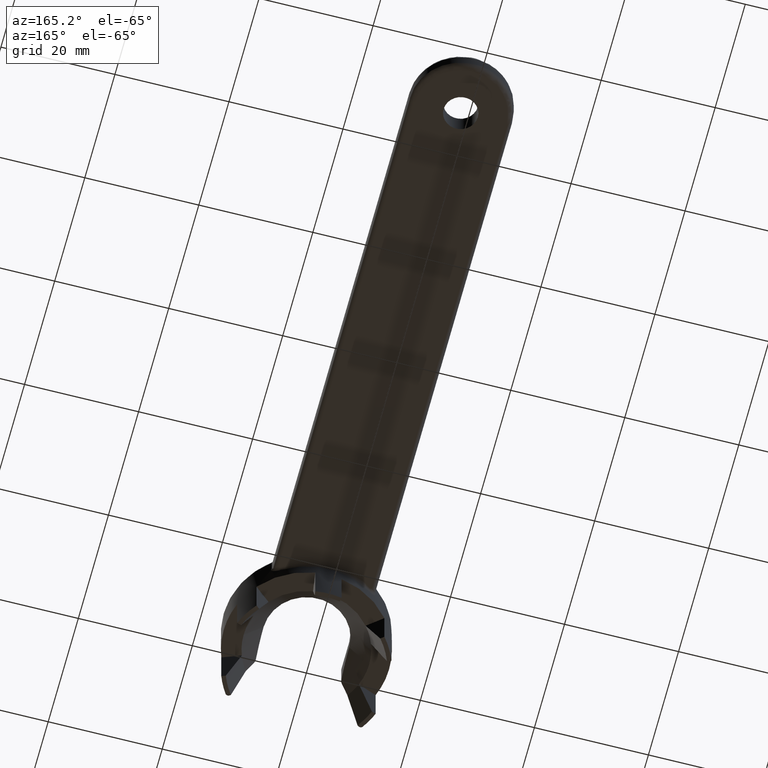
[diagram: clean part render]
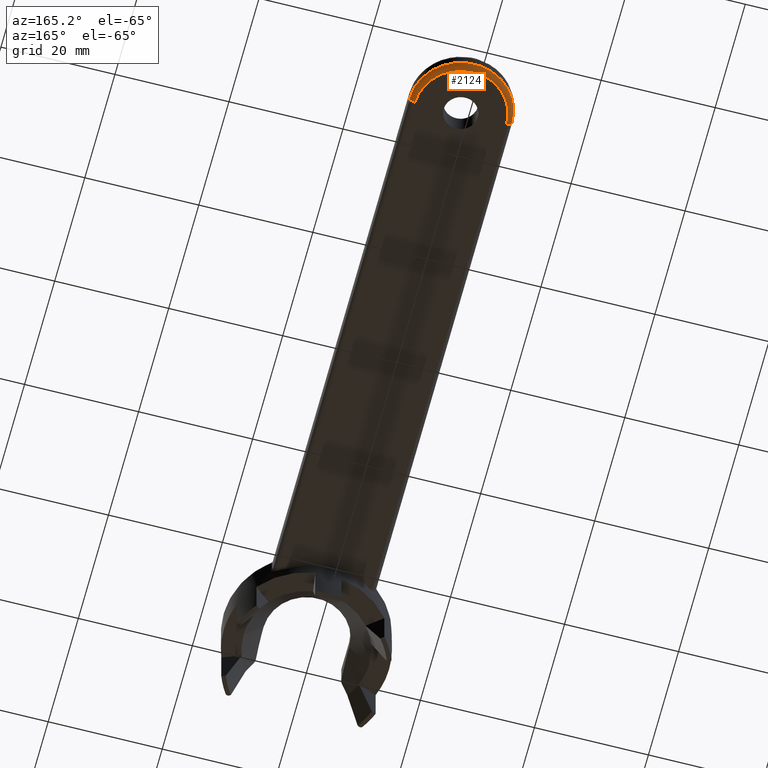
[diagram: same view with one face highlighted and labeled with its STEP entity id]
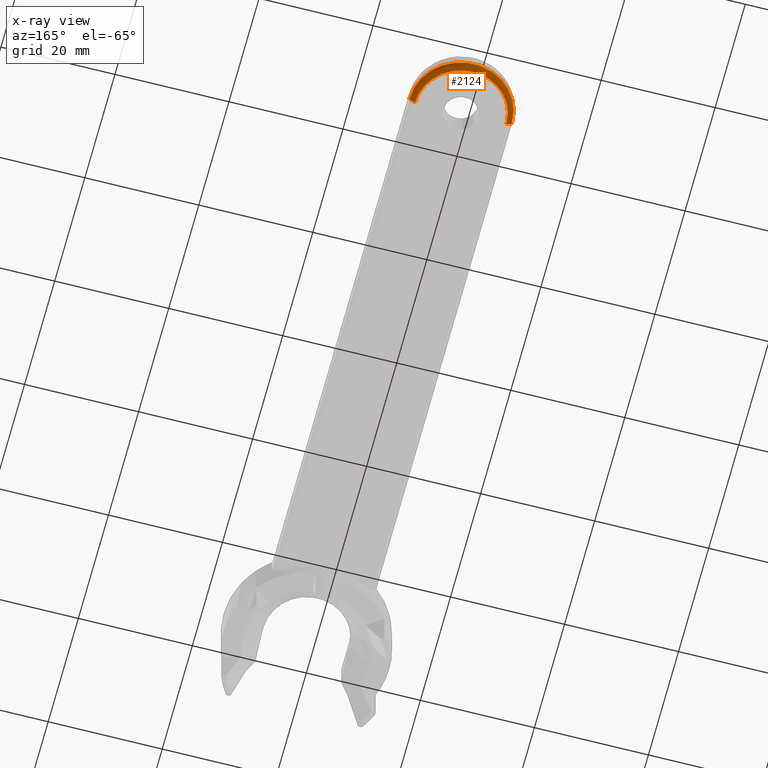
[diagram: x-ray of the same camera — body ghosted, the highlighted face saturated]
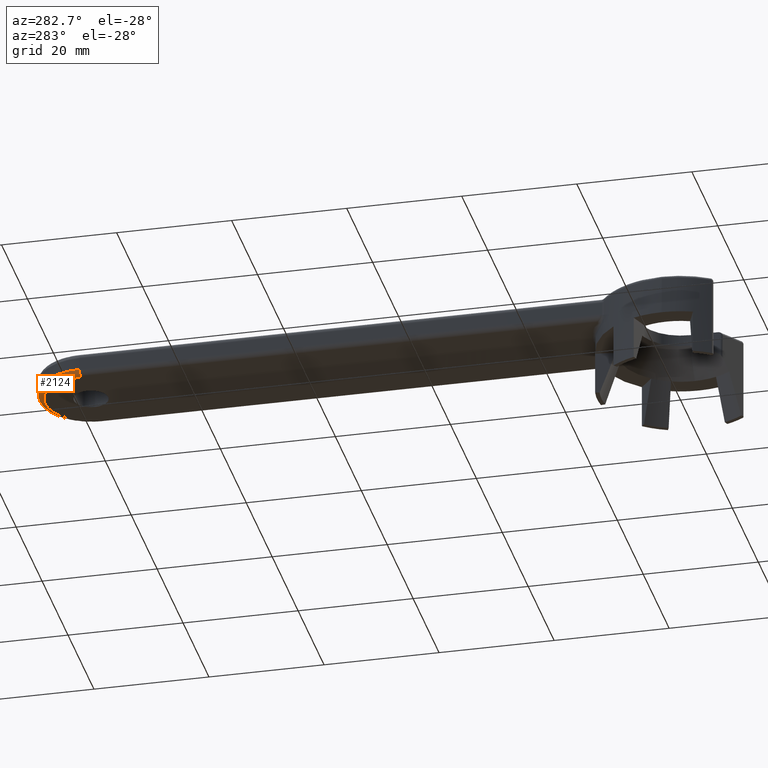
[diagram: same view with one face highlighted and labeled with its STEP entity id]
A machine part, auxiliary view. The second image highlights one B-rep face of the part: STEP entity #2124.
The next image is the same camera in x-ray: the body ghosted, the highlighted face saturated — about 0% of this face is hidden behind the body in this view.
A second angle (auxiliary view) of the same face is appended — the face is thin or edge-on in the first view.
In plain terms, the highlighted face is a freeform B-spline surface patch.
Its self-contained STEP definition (entity closure, byte-faithful):
#15 = CARTESIAN_POINT ( 'NONE',  ( 7.999999999937709400, 102.4771138296289600, -4.149999999948736500 ) ) ;
#42 = CARTESIAN_POINT ( 'NONE',  ( -9.063220423000000600, 120.6035546870000100, -3.730053765000000100 ) ) ;
#52 = CIRCLE ( 'NONE', #1437, 1.000000000000000900 ) ;
#130 = CARTESIAN_POINT ( 'NONE',  ( -7.999999999937709400, 102.4771138296289800, -4.149999999948736500 ) ) ;
#200 = CARTESIAN_POINT ( 'NONE',  ( 9.000000000000001800, 102.4771138420000100, -3.150000000044896900 ) ) ;
#221 = CARTESIAN_POINT ( 'NONE',  ( -8.000000000135530700, 118.4771138422622600, -4.149999999794947500 ) ) ;
#242 = CARTESIAN_POINT ( 'NONE',  ( 8.580053765000000600, 102.4771138420000100, -4.213220423000001900 ) ) ;
#273 = FACE_OUTER_BOUND ( 'NONE', #609, .T. ) ;
#308 = EDGE_CURVE ( 'NONE', #807, #586, #635, .T. ) ;
#403 = EDGE_CURVE ( 'NONE', #1071, #807, #52, .T. ) ;
#427 = ORIENTED_EDGE ( 'NONE', *, *, #1614, .T. ) ;
#441 = CARTESIAN_POINT ( 'NONE',  ( -8.580053764999998800, 119.6372213720000300, -4.213220423000001900 ) ) ;
#546 = CARTESIAN_POINT ( 'NONE',  ( 0.0000000000000000000, 102.4771138420000100, -3.149999999999999900 ) ) ;
#586 = VERTEX_POINT ( 'NONE', #200 ) ;
#609 = EDGE_LOOP ( 'NONE', ( #2327, #427, #676, #1996 ) ) ;
#632 = CARTESIAN_POINT ( 'NONE',  ( 7.900166583000000700, 102.4771138420000100, -4.145004164999999600 ) ) ;
#635 = CIRCLE ( 'NONE', #883, 9.000000000000001800 ) ;
#676 = ORIENTED_EDGE ( 'NONE', *, *, #403, .T. ) ;
#750 = DIRECTION ( 'NONE',  ( 1.000000000000000000, 0.0000000000000000000, 0.0000000000000000000 ) ) ;
#790 = CARTESIAN_POINT ( 'NONE',  ( -9.000000000000001800, 102.4771138401540800, -3.150000000044896900 ) ) ;
#807 = VERTEX_POINT ( 'NONE', #790 ) ;
#833 = CARTESIAN_POINT ( 'NONE',  ( 8.995004165000001000, 120.4671221720000200, -3.050166583000000200 ) ) ;
#846 = CARTESIAN_POINT ( 'NONE',  ( -7.900166583000000700, 118.2774470080000100, -4.145004164999999600 ) ) ;
#863 = CARTESIAN_POINT ( 'NONE',  ( 7.999999999937709400, 102.4771138296289800, -4.149999999948736500 ) ) ;
#883 = AXIS2_PLACEMENT_3D ( 'NONE', #546, #1973, #750 ) ;
#915 = CIRCLE ( 'NONE', #994, 1.000000000000000900 ) ;
#994 = AXIS2_PLACEMENT_3D ( 'NONE', #2384, #1134, #2617 ) ;
#1043 = CARTESIAN_POINT ( 'NONE',  ( -8.995004165000001000, 102.4771138420000100, -3.050166582999999800 ) ) ;
#1071 = VERTEX_POINT ( 'NONE', #130 ) ;
#1083 =( BOUNDED_SURFACE ( )  B_SPLINE_SURFACE ( 3, 3, ( 
 ( #1453, #833, #2280, #1043 ),
 ( #2518, #1247, #42, #1461 ),
 ( #242, #1648, #441, #1857 ),
 ( #632, #2077, #846, #2291 ) ),
 .UNSPECIFIED., .F., .F., .F. ) 
 B_SPLINE_SURFACE_WITH_KNOTS ( ( 4, 4 ),
 ( 4, 4 ),
 ( 0.0000000000000000000, 1.000000000000000000 ),
 ( 0.0000000000000000000, 1.000000000000000000 ),
 .UNSPECIFIED. ) 
 GEOMETRIC_REPRESENTATION_ITEM ( )  RATIONAL_B_SPLINE_SURFACE ( (
 ( 1.000000000000000000, 0.3333333333333330400, 0.3333333333333330400, 1.000000000000000000),
 ( 0.7553208711179710800, 0.2517736237059899900, 0.2517736237059899900, 0.7553208711179710800),
 ( 0.7553208711179710800, 0.2517736237059899900, 0.2517736237059899900, 0.7553208711179710800),
 ( 1.000000000000000000, 0.3333333333333330400, 0.3333333333333330400, 1.000000000000000000) ) ) 
 REPRESENTATION_ITEM ( '' )  SURFACE ( )  );
#1134 = DIRECTION ( 'NONE',  ( -0.0000000000000000000, 1.000000000000000000, -0.0000000000000000000 ) ) ;
#1182 = DIRECTION ( 'NONE',  ( 0.0000000000000000000, 1.000000000000000000, 0.0000000000000000000 ) ) ;
#1225 = CARTESIAN_POINT ( 'NONE',  ( 8.000000000135530700, 118.4771138422622600, -4.149999999794947500 ) ) ;
#1247 = CARTESIAN_POINT ( 'NONE',  ( 9.063220423000000600, 120.6035546870000100, -3.730053765000000100 ) ) ;
#1437 = AXIS2_PLACEMENT_3D ( 'NONE', #2446, #1182, #2680 ) ;
#1453 = CARTESIAN_POINT ( 'NONE',  ( 8.995004165000001000, 102.4771138420000100, -3.050166582999999800 ) ) ;
#1461 = CARTESIAN_POINT ( 'NONE',  ( -9.063220422999998900, 102.4771138420000100, -3.730053765000000100 ) ) ;
#1614 = EDGE_CURVE ( 'NONE', #2191, #1071, #1797, .T. ) ;
#1622 = CARTESIAN_POINT ( 'NONE',  ( -7.999999999937709400, 102.4771138296289600, -4.149999999948736500 ) ) ;
#1648 = CARTESIAN_POINT ( 'NONE',  ( 8.580053764999998800, 119.6372213720000300, -4.213220423000001900 ) ) ;
#1732 = EDGE_CURVE ( 'NONE', #586, #2191, #915, .T. ) ;
#1797 =( BOUNDED_CURVE ( )  B_SPLINE_CURVE ( 3, ( #15, #1225, #221, #1622 ),
 .UNSPECIFIED., .F., .F. ) 
 B_SPLINE_CURVE_WITH_KNOTS ( ( 4, 4 ),
 ( 0.0000000000000000000, 1.000000000000000000 ),
 .UNSPECIFIED. ) 
 CURVE ( )  GEOMETRIC_REPRESENTATION_ITEM ( )  RATIONAL_B_SPLINE_CURVE ( ( 0.9565783021650607900, 0.3188594340550199300, 0.3188594340550199300, 0.9565783021650607900 ) ) 
 REPRESENTATION_ITEM ( '' )  );
#1857 = CARTESIAN_POINT ( 'NONE',  ( -8.580053765000000600, 102.4771138420000100, -4.213220423000001900 ) ) ;
#1973 = DIRECTION ( 'NONE',  ( -0.0000000000000000000, -0.0000000000000000000, -1.000000000000000000 ) ) ;
#1996 = ORIENTED_EDGE ( 'NONE', *, *, #308, .T. ) ;
#2077 = CARTESIAN_POINT ( 'NONE',  ( 7.900166583000000700, 118.2774470080000100, -4.145004164999999600 ) ) ;
#2124 = ADVANCED_FACE ( 'NONE', ( #273 ), #1083, .T. ) ;
#2191 = VERTEX_POINT ( 'NONE', #863 ) ;
#2280 = CARTESIAN_POINT ( 'NONE',  ( -8.995004165000001000, 120.4671221720000200, -3.050166583000000200 ) ) ;
#2291 = CARTESIAN_POINT ( 'NONE',  ( -7.900166583000000700, 102.4771138420000100, -4.145004164999999600 ) ) ;
#2327 = ORIENTED_EDGE ( 'NONE', *, *, #1732, .T. ) ;
#2384 = CARTESIAN_POINT ( 'NONE',  ( 8.000000000000000000, 102.4771138420000100, -3.149999999999999900 ) ) ;
#2446 = CARTESIAN_POINT ( 'NONE',  ( -8.000000000000000000, 102.4771138420000100, -3.149999999999999900 ) ) ;
#2518 = CARTESIAN_POINT ( 'NONE',  ( 9.063220422999998900, 102.4771138420000100, -3.730053765000000100 ) ) ;
#2617 = DIRECTION ( 'NONE',  ( 1.000000000000000000, 0.0000000000000000000, 0.0000000000000000000 ) ) ;
#2680 = DIRECTION ( 'NONE',  ( -1.000000000000000000, 0.0000000000000000000, 0.0000000000000000000 ) ) ;